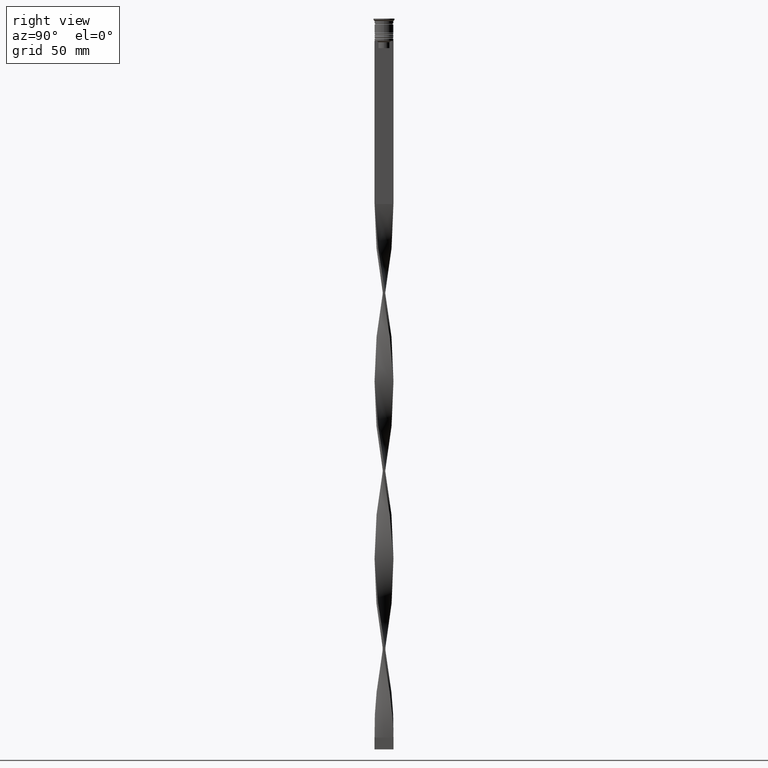
[diagram: clean part render]
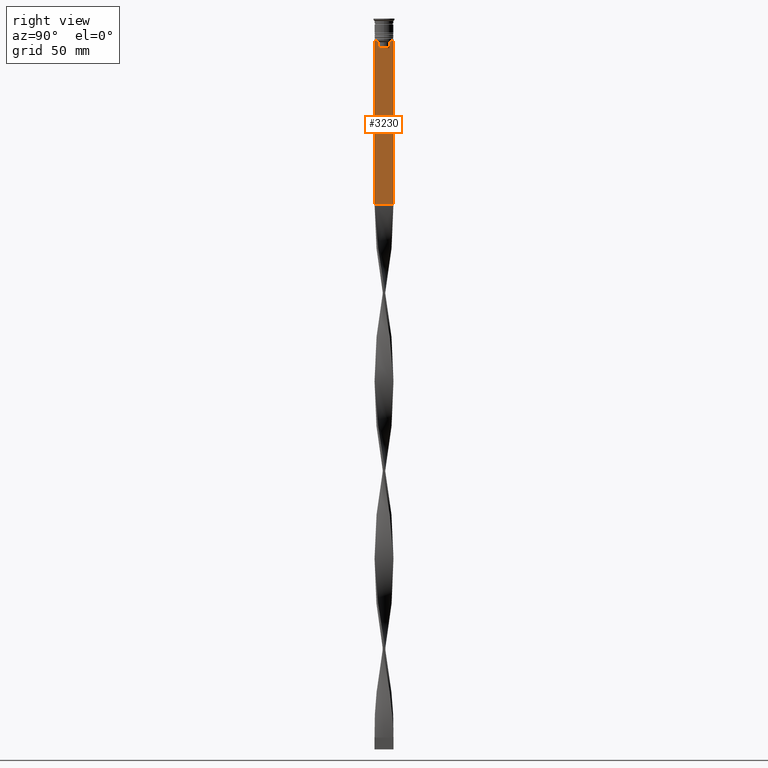
[diagram: same view with one face highlighted and labeled with its STEP entity id]
A machine part, right view. The second image highlights one B-rep face of the part: STEP entity #3230.
In plain terms, the highlighted planar face has unit normal (-1, 0, 0).
Its self-contained STEP definition (entity closure, byte-faithful):
#36 = EDGE_CURVE ( 'NONE', #43, #4052, #106, .T. ) ;
#43 = VERTEX_POINT ( 'NONE', #719 ) ;
#82 = CARTESIAN_POINT ( 'NONE',  ( 0.5000000000000000000, 2.517407211010872281, -9.833663366238582171 ) ) ;
#89 = ORIENTED_EDGE ( 'NONE', *, *, #3755, .T. ) ;
#106 = LINE ( 'NONE', #1045, #1583 ) ;
#139 = CARTESIAN_POINT ( 'NONE',  ( 0.5000000000000000000, 2.399999999999996803, -12.50000000000000000 ) ) ;
#168 = LINE ( 'NONE', #2673, #3694 ) ;
#186 = CARTESIAN_POINT ( 'NONE',  ( 0.5000000000000000000, -2.687095498514037839, -9.666937905752043037 ) ) ;
#211 = DIRECTION ( 'NONE',  ( 0.000000000000000000, 0.000000000000000000, 1.000000000000000000 ) ) ;
#375 = B_SPLINE_CURVE_WITH_KNOTS ( 'NONE', 3,
 ( #3256, #2344, #186, #3294 ),
 .UNSPECIFIED., .F., .F.,
 ( 4, 4 ),
 ( 0.01178336557230038467, 0.01249758354768160280 ),
 .UNSPECIFIED. ) ;
#411 = EDGE_CURVE ( 'NONE', #3223, #2588, #1725, .T. ) ;
#432 = DIRECTION ( 'NONE',  ( 0.000000000000000000, -1.000000000000000000, 0.000000000000000000 ) ) ;
#433 = ORIENTED_EDGE ( 'NONE', *, *, #1871, .T. ) ;
#454 = CARTESIAN_POINT ( 'NONE',  ( 0.5000000000000000000, 2.687094542495898075, -9.666938847453439010 ) ) ;
#489 = DIRECTION ( 'NONE',  ( 0.000000000000000000, 0.000000000000000000, -1.000000000000000000 ) ) ;
#513 = DIRECTION ( 'NONE',  ( 0.000000000000000000, -1.000000000000000000, 0.000000000000000000 ) ) ;
#702 = ORIENTED_EDGE ( 'NONE', *, *, #2172, .T. ) ;
#709 = CARTESIAN_POINT ( 'NONE',  ( 0.5000000000000000000, -4.000000000000000000, -78.50000000000000000 ) ) ;
#719 = CARTESIAN_POINT ( 'NONE',  ( 0.5000000000000000000, -4.000000000000000000, -9.500000000000000000 ) ) ;
#750 = CARTESIAN_POINT ( 'NONE',  ( 0.5000000000000000000, -4.000000000000000000, -78.50000000000000000 ) ) ;
#751 = AXIS2_PLACEMENT_3D ( 'NONE', #3730, #2402, #211 ) ;
#772 = CARTESIAN_POINT ( 'NONE',  ( 0.5000000000000000000, -3.867815921162741422, -9.500000000000000000 ) ) ;
#850 = LINE ( 'NONE', #139, #2255 ) ;
#860 = PLANE ( 'NONE',  #751 ) ;
#905 = VERTEX_POINT ( 'NONE', #2491 ) ;
#1045 = CARTESIAN_POINT ( 'NONE',  ( 0.5000000000000000000, -4.000000000000000000, -1.437742251701450202 ) ) ;
#1060 = B_SPLINE_CURVE_WITH_KNOTS ( 'NONE', 3,
 ( #3342, #454, #82, #1669 ),
 .UNSPECIFIED., .F., .F.,
 ( 4, 4 ),
 ( 0.004956812174141191595, 0.005670477137898149653 ),
 .UNSPECIFIED. ) ;
#1121 = LINE ( 'NONE', #3937, #1386 ) ;
#1125 = VERTEX_POINT ( 'NONE', #1920 ) ;
#1185 = ORIENTED_EDGE ( 'NONE', *, *, #2177, .T. ) ;
#1300 = EDGE_CURVE ( 'NONE', #1638, #3067, #1060, .T. ) ;
#1386 = VECTOR ( 'NONE', #489, 1000.000000000000000 ) ;
#1391 = VECTOR ( 'NONE', #3207, 1000.000000000000000 ) ;
#1411 = DIRECTION ( 'NONE',  ( 0.000000000000000000, -1.000000000000000000, 0.000000000000000000 ) ) ;
#1537 = DIRECTION ( 'NONE',  ( -0.000000000000000000, -0.000000000000000000, 1.000000000000000000 ) ) ;
#1583 = VECTOR ( 'NONE', #3530, 1000.000000000000000 ) ;
#1621 = ORIENTED_EDGE ( 'NONE', *, *, #2685, .T. ) ;
#1638 = VERTEX_POINT ( 'NONE', #3533 ) ;
#1669 = CARTESIAN_POINT ( 'NONE',  ( 0.5000000000000000000, 2.347338918861097135, -10.00000000000000000 ) ) ;
#1722 = ORIENTED_EDGE ( 'NONE', *, *, #36, .T. ) ;
#1725 = LINE ( 'NONE', #3319, #2829 ) ;
#1773 = CARTESIAN_POINT ( 'NONE',  ( 0.5000000000000000000, 2.347338918861097135, -12.50000000000000000 ) ) ;
#1818 = FACE_OUTER_BOUND ( 'NONE', #4040, .T. ) ;
#1820 = EDGE_CURVE ( 'NONE', #3223, #4046, #1121, .T. ) ;
#1856 = VERTEX_POINT ( 'NONE', #1773 ) ;
#1871 = EDGE_CURVE ( 'NONE', #905, #1125, #375, .T. ) ;
#1878 = ORIENTED_EDGE ( 'NONE', *, *, #2982, .T. ) ;
#1920 = CARTESIAN_POINT ( 'NONE',  ( 0.5000000000000000000, -2.856571371417138572, -9.500000000000000000 ) ) ;
#1967 = DIRECTION ( 'NONE',  ( 0.000000000000000000, 1.000000000000000000, 0.000000000000000000 ) ) ;
#2040 = LINE ( 'NONE', #2657, #3955 ) ;
#2091 = ORIENTED_EDGE ( 'NONE', *, *, #1300, .T. ) ;
#2172 = EDGE_CURVE ( 'NONE', #3067, #1856, #2238, .T. ) ;
#2177 = EDGE_CURVE ( 'NONE', #4052, #4046, #2917, .T. ) ;
#2195 = LINE ( 'NONE', #3736, #2436 ) ;
#2238 = LINE ( 'NONE', #2258, #1391 ) ;
#2255 = VECTOR ( 'NONE', #513, 1000.000000000000000 ) ;
#2258 = CARTESIAN_POINT ( 'NONE',  ( 0.5000000000000000000, 2.347338918861097135, 0.000000000000000000 ) ) ;
#2291 = CARTESIAN_POINT ( 'NONE',  ( 0.5000000000000000000, 4.000000000000000000, -78.50000000000000000 ) ) ;
#2344 = CARTESIAN_POINT ( 'NONE',  ( 0.5000000000000000000, -2.517408374291112416, -9.833662228483172285 ) ) ;
#2366 = DIRECTION ( 'NONE',  ( 0.000000000000000000, -1.000000000000000000, 0.000000000000000000 ) ) ;
#2402 = DIRECTION ( 'NONE',  ( -1.000000000000000000, 0.000000000000000000, 0.000000000000000000 ) ) ;
#2436 = VECTOR ( 'NONE', #1537, 1000.000000000000000 ) ;
#2445 = VECTOR ( 'NONE', #1411, 1000.000000000000000 ) ;
#2472 = CARTESIAN_POINT ( 'NONE',  ( 0.5000000000000000000, 4.000000000000000000, -9.500000000000000000 ) ) ;
#2491 = CARTESIAN_POINT ( 'NONE',  ( 0.5000000000000000000, -2.347338918861097135, -10.00000000000000000 ) ) ;
#2584 = CARTESIAN_POINT ( 'NONE',  ( 0.5000000000000000000, -2.347338918861097135, -12.50000000000000000 ) ) ;
#2588 = VERTEX_POINT ( 'NONE', #3409 ) ;
#2657 = CARTESIAN_POINT ( 'NONE',  ( 0.5000000000000000000, -4.000000000000000000, -9.500000000000000000 ) ) ;
#2673 = CARTESIAN_POINT ( 'NONE',  ( 0.5000000000000000000, -4.000000000000000000, -9.500000000000000000 ) ) ;
#2685 = EDGE_CURVE ( 'NONE', #2798, #905, #2195, .T. ) ;
#2710 = ORIENTED_EDGE ( 'NONE', *, *, #411, .T. ) ;
#2798 = VERTEX_POINT ( 'NONE', #2584 ) ;
#2826 = ORIENTED_EDGE ( 'NONE', *, *, #3153, .T. ) ;
#2829 = VECTOR ( 'NONE', #2898, 1000.000000000000000 ) ;
#2898 = DIRECTION ( 'NONE',  ( 0.000000000000000000, -1.000000000000000000, 0.000000000000000000 ) ) ;
#2917 = LINE ( 'NONE', #709, #3362 ) ;
#2932 = CARTESIAN_POINT ( 'NONE',  ( 0.5000000000000000000, 2.347338918861097135, -10.00000000000000000 ) ) ;
#2982 = EDGE_CURVE ( 'NONE', #1125, #3536, #2040, .T. ) ;
#3012 = LINE ( 'NONE', #3607, #2445 ) ;
#3067 = VERTEX_POINT ( 'NONE', #2932 ) ;
#3153 = EDGE_CURVE ( 'NONE', #3536, #43, #168, .T. ) ;
#3207 = DIRECTION ( 'NONE',  ( 0.000000000000000000, 0.000000000000000000, -1.000000000000000000 ) ) ;
#3223 = VERTEX_POINT ( 'NONE', #2472 ) ;
#3230 = ADVANCED_FACE ( 'NONE', ( #1818 ), #860, .F. ) ;
#3256 = CARTESIAN_POINT ( 'NONE',  ( 0.5000000000000000000, -2.347338918861097135, -10.00000000000000000 ) ) ;
#3294 = CARTESIAN_POINT ( 'NONE',  ( 0.5000000000000000000, -2.856571371417138572, -9.500000000000000000 ) ) ;
#3319 = CARTESIAN_POINT ( 'NONE',  ( 0.5000000000000000000, -4.000000000000000000, -9.500000000000000000 ) ) ;
#3342 = CARTESIAN_POINT ( 'NONE',  ( 0.5000000000000000000, 2.856571371417138572, -9.500000000000000000 ) ) ;
#3362 = VECTOR ( 'NONE', #1967, 1000.000000000000000 ) ;
#3409 = CARTESIAN_POINT ( 'NONE',  ( 0.5000000000000000000, 3.867815921162741422, -9.500000000000000000 ) ) ;
#3530 = DIRECTION ( 'NONE',  ( 0.000000000000000000, 0.000000000000000000, -1.000000000000000000 ) ) ;
#3533 = CARTESIAN_POINT ( 'NONE',  ( 0.5000000000000000000, 2.856571371417138572, -9.500000000000000000 ) ) ;
#3536 = VERTEX_POINT ( 'NONE', #772 ) ;
#3607 = CARTESIAN_POINT ( 'NONE',  ( 0.5000000000000000000, -4.000000000000000000, -9.500000000000000000 ) ) ;
#3613 = EDGE_CURVE ( 'NONE', #2588, #1638, #3012, .T. ) ;
#3669 = ORIENTED_EDGE ( 'NONE', *, *, #3613, .T. ) ;
#3694 = VECTOR ( 'NONE', #2366, 1000.000000000000000 ) ;
#3730 = CARTESIAN_POINT ( 'NONE',  ( 0.5000000000000000000, -4.000000000000000000, -1.437742251701450202 ) ) ;
#3736 = CARTESIAN_POINT ( 'NONE',  ( 0.5000000000000000000, -2.347338918861097135, 0.000000000000000000 ) ) ;
#3755 = EDGE_CURVE ( 'NONE', #1856, #2798, #850, .T. ) ;
#3890 = ORIENTED_EDGE ( 'NONE', *, *, #1820, .F. ) ;
#3937 = CARTESIAN_POINT ( 'NONE',  ( 0.5000000000000000000, 4.000000000000000000, -1.437742251701450202 ) ) ;
#3955 = VECTOR ( 'NONE', #432, 1000.000000000000000 ) ;
#4040 = EDGE_LOOP ( 'NONE', ( #3669, #2091, #702, #89, #1621, #433, #1878, #2826, #1722, #1185, #3890, #2710 ) ) ;
#4046 = VERTEX_POINT ( 'NONE', #2291 ) ;
#4052 = VERTEX_POINT ( 'NONE', #750 ) ;